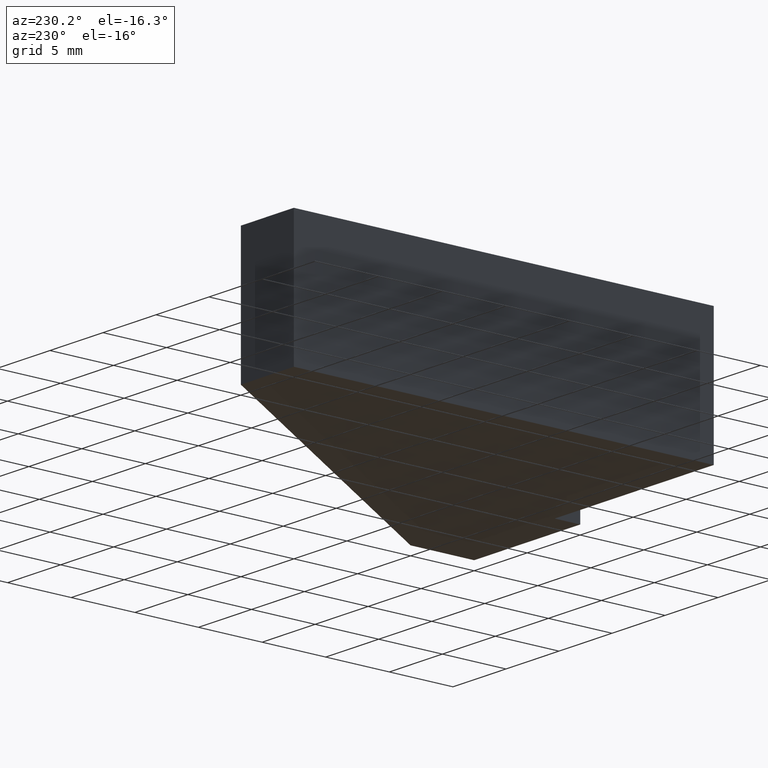
[diagram: clean part render]
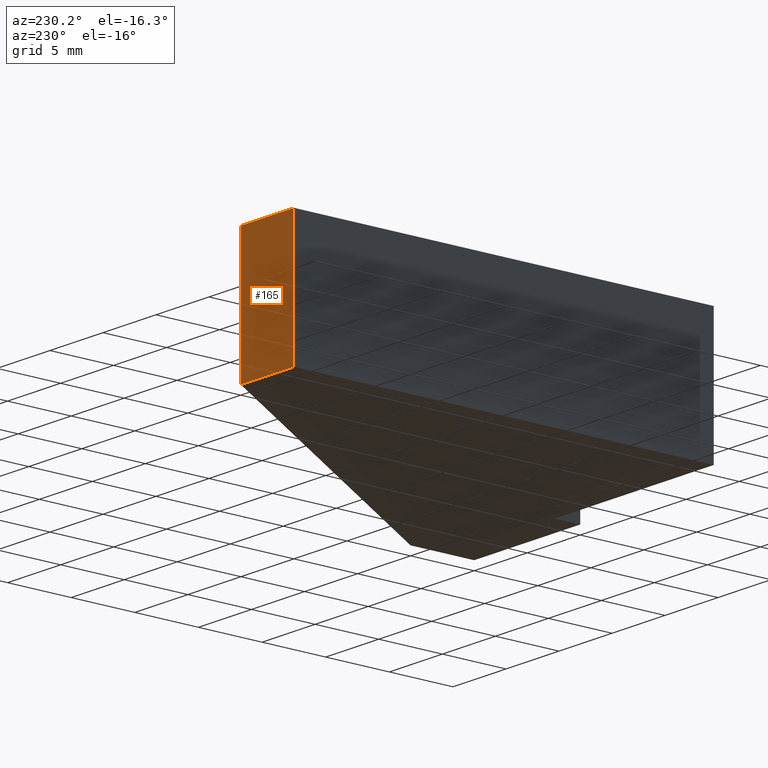
[diagram: same view with one face highlighted and labeled with its STEP entity id]
A machine part, auxiliary view. The second image highlights one B-rep face of the part: STEP entity #165.
In plain terms, the highlighted planar face has unit normal (0, 1, 0).
Its self-contained STEP definition (entity closure, byte-faithful):
#19=FACE_OUTER_BOUND('',#28,.T.);
#28=EDGE_LOOP('',(#129,#130,#131,#132));
#38=LINE('',#254,#59);
#46=LINE('',#269,#67);
#47=LINE('',#272,#68);
#48=LINE('',#273,#69);
#59=VECTOR('',#208,10.);
#67=VECTOR('',#222,10.);
#68=VECTOR('',#225,10.);
#69=VECTOR('',#226,10.);
#80=VERTEX_POINT('',#251);
#81=VERTEX_POINT('',#253);
#85=VERTEX_POINT('',#267);
#86=VERTEX_POINT('',#271);
#94=EDGE_CURVE('',#81,#80,#38,.T.);
#102=EDGE_CURVE('',#85,#80,#46,.T.);
#103=EDGE_CURVE('',#85,#86,#47,.T.);
#104=EDGE_CURVE('',#86,#81,#48,.T.);
#129=ORIENTED_EDGE('',*,*,#103,.T.);
#130=ORIENTED_EDGE('',*,*,#104,.T.);
#131=ORIENTED_EDGE('',*,*,#94,.T.);
#132=ORIENTED_EDGE('',*,*,#102,.F.);
#156=PLANE('',#194);
#165=ADVANCED_FACE('',(#19),#156,.T.);
#194=AXIS2_PLACEMENT_3D('',#270,#223,#224);
#208=DIRECTION('',(-1.,8.88178419700125E-16,0.));
#222=DIRECTION('',(0.,0.,-1.));
#223=DIRECTION('center_axis',(8.88178419700125E-16,1.,0.));
#224=DIRECTION('ref_axis',(0.,0.,1.));
#225=DIRECTION('',(1.,-8.88178419700125E-16,0.));
#226=DIRECTION('',(0.,0.,-1.));
#251=CARTESIAN_POINT('',(-25.,35.,-5.));
#253=CARTESIAN_POINT('',(-20.,35.,-5.));
#254=CARTESIAN_POINT('',(-25.,35.,-5.));
#267=CARTESIAN_POINT('',(-25.,35.,5.));
#269=CARTESIAN_POINT('',(-25.,35.,0.));
#270=CARTESIAN_POINT('Origin',(-25.,35.,0.));
#271=CARTESIAN_POINT('',(-20.,35.,5.));
#272=CARTESIAN_POINT('',(-25.,35.,5.));
#273=CARTESIAN_POINT('',(-20.,35.,0.));